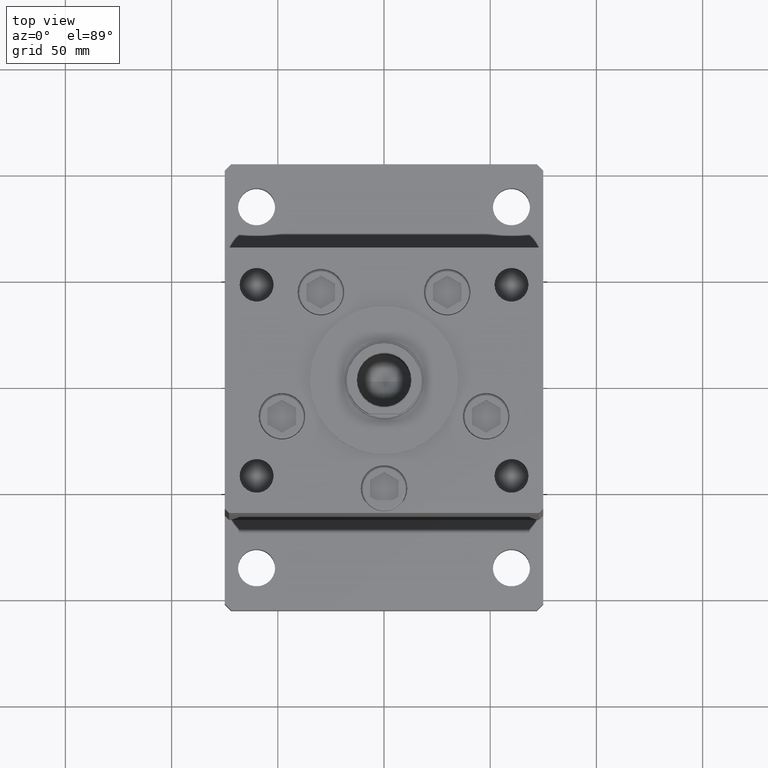
[diagram: clean part render]
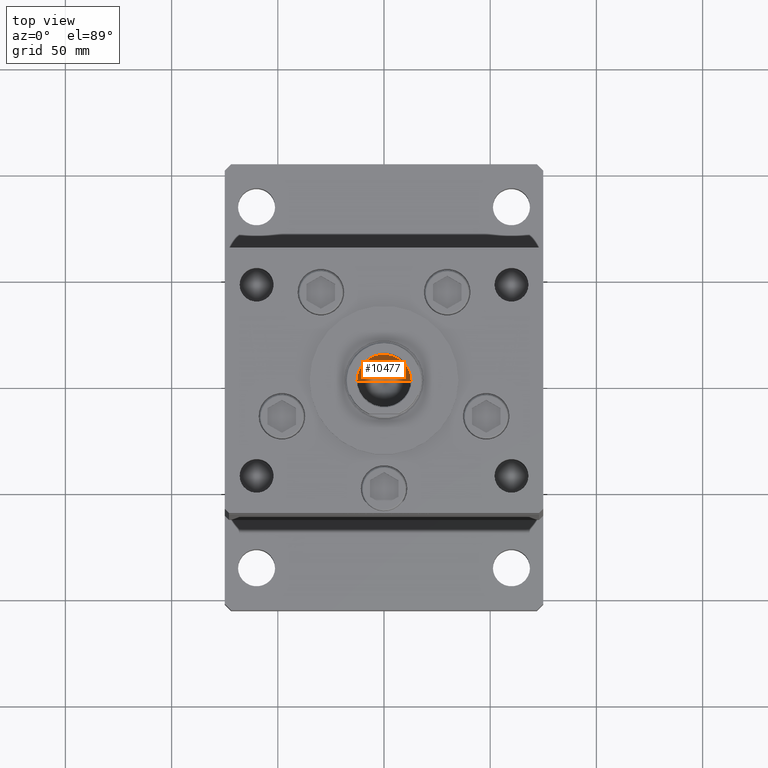
[diagram: same view with one face highlighted and labeled with its STEP entity id]
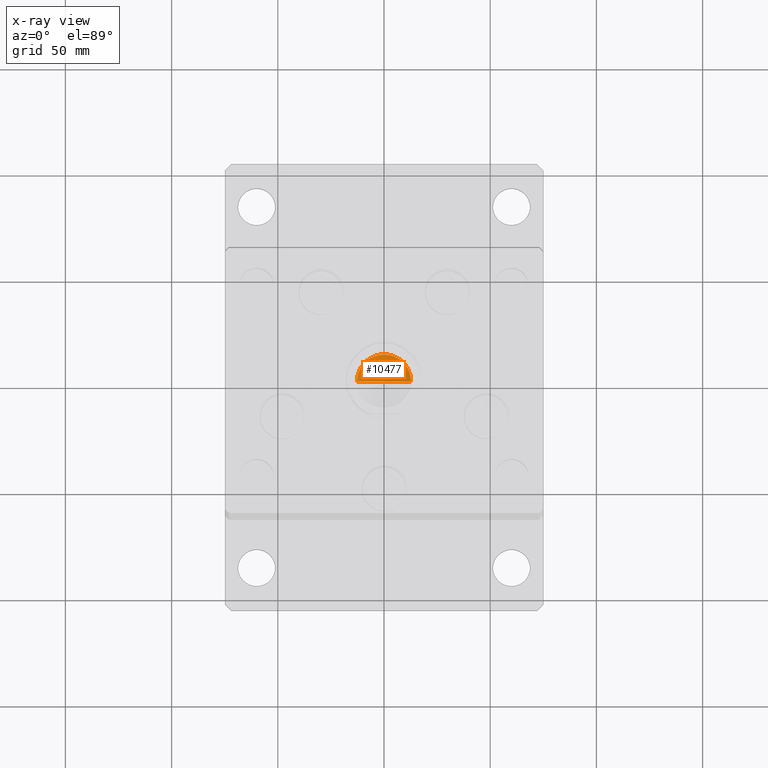
[diagram: x-ray of the same camera — body ghosted, the highlighted face saturated]
A machine part, top view. The second image highlights one B-rep face of the part: STEP entity #10477.
The next image is the same camera in x-ray: the body ghosted, the highlighted face saturated — about 0% of this face is hidden behind the body in this view.
In plain terms, the highlighted conical surface has half-angle 59 deg.
Its self-contained STEP definition (entity closure, byte-faithful):
#1478 = VERTEX_POINT ( 'NONE', #12439 ) ;
#2077 = DIRECTION ( 'NONE',  ( -0.000000000000000000, -0.000000000000000000, 1.000000000000000000 ) ) ;
#2845 = EDGE_CURVE ( 'NONE', #1478, #43424, #27317, .T. ) ;
#6170 = DIRECTION ( 'NONE',  ( 1.000000000000000000, 0.000000000000000000, 0.000000000000000000 ) ) ;
#7969 = CARTESIAN_POINT ( 'NONE',  ( 12.74999999999999112, 0.000000000000000000, 122.5000000000000142 ) ) ;
#9694 = VERTEX_POINT ( 'NONE', #7969 ) ;
#10477 = ADVANCED_FACE ( 'NONE', ( #44221 ), #50670, .F. ) ;
#11033 = CARTESIAN_POINT ( 'NONE',  ( -12.74999999999999112, 1.561424668912874125E-15, 122.5000000000000142 ) ) ;
#12439 = CARTESIAN_POINT ( 'NONE',  ( -1.307202896762960287E-14, 0.000000000000000000, 114.8390271073986071 ) ) ;
#18513 = VECTOR ( 'NONE', #46939, 1000.000000000000000 ) ;
#19522 = DIRECTION ( 'NONE',  ( 1.000000000000000000, 0.000000000000000000, 0.000000000000000000 ) ) ;
#20124 = EDGE_LOOP ( 'NONE', ( #41432, #37113, #52936 ) ) ;
#20552 = CARTESIAN_POINT ( 'NONE',  ( 12.74999999999999112, 0.000000000000000000, 122.5000000000000142 ) ) ;
#21343 = LINE ( 'NONE', #20552, #36946 ) ;
#21674 = EDGE_CURVE ( 'NONE', #9694, #43424, #28215, .T. ) ;
#22914 = EDGE_CURVE ( 'NONE', #1478, #9694, #21343, .T. ) ;
#26469 = AXIS2_PLACEMENT_3D ( 'NONE', #50432, #2077, #6170 ) ;
#27317 = LINE ( 'NONE', #38278, #18513 ) ;
#28215 = CIRCLE ( 'NONE', #26469, 12.74999999999999112 ) ;
#36946 = VECTOR ( 'NONE', #41713, 1000.000000000000000 ) ;
#37113 = ORIENTED_EDGE ( 'NONE', *, *, #22914, .T. ) ;
#38278 = CARTESIAN_POINT ( 'NONE',  ( -12.74999999999999112, 1.561424668912874125E-15, 122.5000000000000142 ) ) ;
#41432 = ORIENTED_EDGE ( 'NONE', *, *, #2845, .F. ) ;
#41713 = DIRECTION ( 'NONE',  ( 0.8571673007021117785, 0.000000000000000000, 0.5150380749100550437 ) ) ;
#43424 = VERTEX_POINT ( 'NONE', #11033 ) ;
#44221 = FACE_OUTER_BOUND ( 'NONE', #20124, .T. ) ;
#45483 = AXIS2_PLACEMENT_3D ( 'NONE', #48562, #48292, #19522 ) ;
#46939 = DIRECTION ( 'NONE',  ( -0.8571673007021117785, 1.049727191138617956E-16, 0.5150380749100550437 ) ) ;
#48292 = DIRECTION ( 'NONE',  ( -0.000000000000000000, -0.000000000000000000, 1.000000000000000000 ) ) ;
#48562 = CARTESIAN_POINT ( 'NONE',  ( 0.000000000000000000, 0.000000000000000000, 122.5000000000000142 ) ) ;
#50432 = CARTESIAN_POINT ( 'NONE',  ( 0.000000000000000000, 0.000000000000000000, 122.5000000000000142 ) ) ;
#50670 = CONICAL_SURFACE ( 'NONE', #45483, 12.74999999999999112, 1.029744258676653423 ) ;
#52936 = ORIENTED_EDGE ( 'NONE', *, *, #21674, .T. ) ;